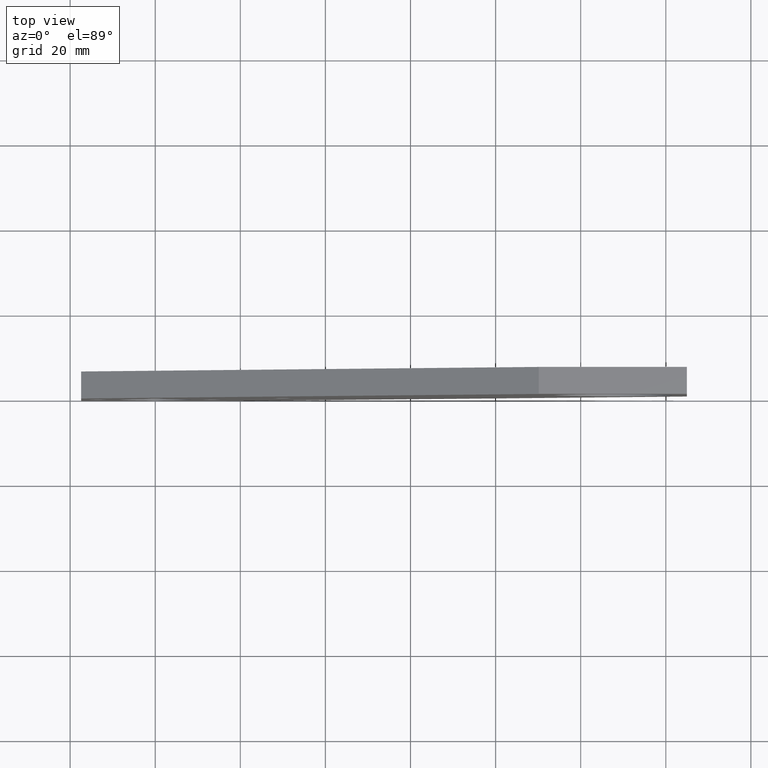
[diagram: clean part render]
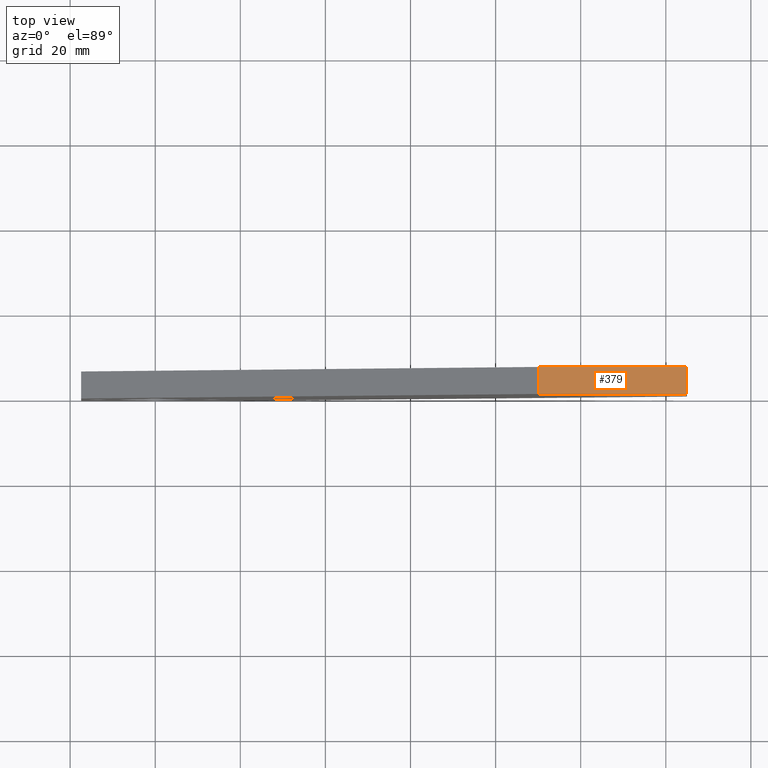
[diagram: same view with one face highlighted and labeled with its STEP entity id]
A machine part, top view. The second image highlights one B-rep face of the part: STEP entity #379.
In plain terms, the highlighted planar face has unit normal (0, 0, 1).
Its self-contained STEP definition (entity closure, byte-faithful):
#23=LINE('',#595,#41);
#24=LINE('',#611,#42);
#25=LINE('',#612,#43);
#26=LINE('',#613,#44);
#41=VECTOR('',#474,10.);
#42=VECTOR('',#489,10.);
#43=VECTOR('',#490,10.);
#44=VECTOR('',#491,10.);
#55=PLANE('',#420);
#100=FACE_OUTER_BOUND('',#133,.T.);
#133=EDGE_LOOP('',(#296,#297,#298,#299));
#206=VERTEX_POINT('',#585);
#210=VERTEX_POINT('',#593);
#217=VERTEX_POINT('',#609);
#218=VERTEX_POINT('',#610);
#246=EDGE_CURVE('',#210,#206,#23,.T.);
#253=EDGE_CURVE('',#217,#218,#24,.T.);
#254=EDGE_CURVE('',#206,#218,#25,.T.);
#255=EDGE_CURVE('',#210,#217,#26,.T.);
#296=ORIENTED_EDGE('',*,*,#253,.T.);
#297=ORIENTED_EDGE('',*,*,#254,.F.);
#298=ORIENTED_EDGE('',*,*,#246,.F.);
#299=ORIENTED_EDGE('',*,*,#255,.T.);
#379=ADVANCED_FACE('',(#100),#55,.T.);
#420=AXIS2_PLACEMENT_3D('',#608,#487,#488);
#474=DIRECTION('',(-1.,0.,0.));
#487=DIRECTION('center_axis',(0.,0.,1.));
#488=DIRECTION('ref_axis',(1.,0.,0.));
#489=DIRECTION('',(-1.,0.,0.));
#490=DIRECTION('',(0.,1.,0.));
#491=DIRECTION('',(0.,1.,0.));
#585=CARTESIAN_POINT('',(90.141888,0.,78.7795283106746));
#593=CARTESIAN_POINT('',(124.941888,0.,78.7795283106746));
#595=CARTESIAN_POINT('',(124.941888,0.,78.7795283106746));
#608=CARTESIAN_POINT('Origin',(90.141888,0.,78.7795283106746));
#609=CARTESIAN_POINT('',(124.941888,6.35,78.7795283106746));
#610=CARTESIAN_POINT('',(90.141888,6.35,78.7795283106746));
#611=CARTESIAN_POINT('',(94.496888,6.35,78.7795283106746));
#612=CARTESIAN_POINT('',(90.141888,0.,78.7795283106746));
#613=CARTESIAN_POINT('',(124.941888,0.,78.7795283106746));